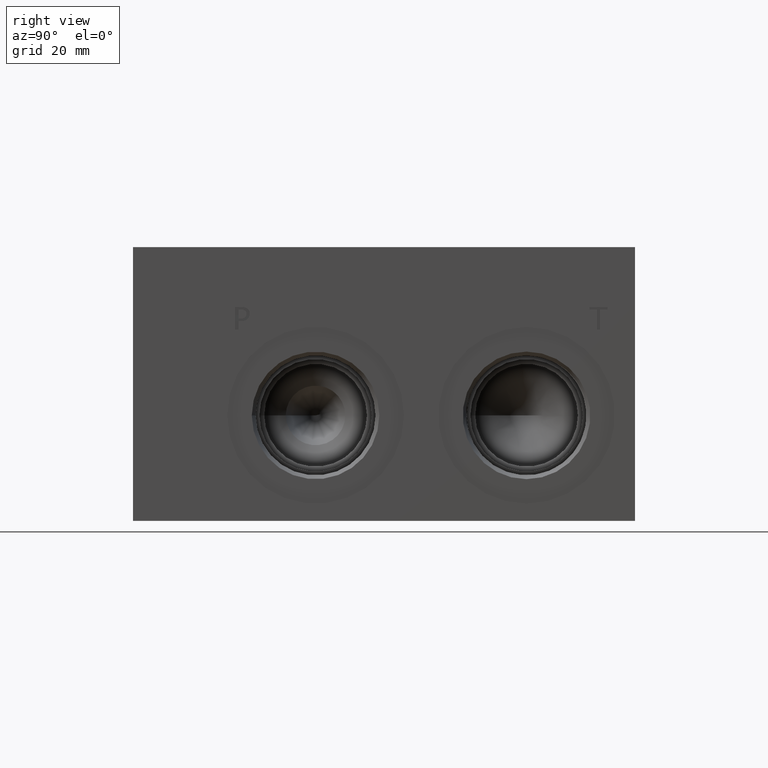
[diagram: clean part render]
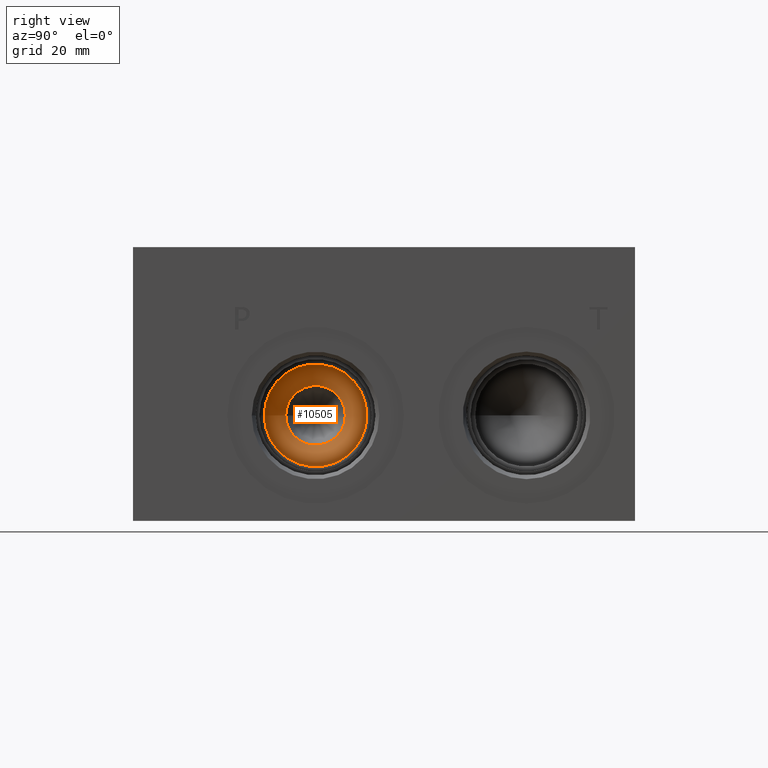
[diagram: same view with one face highlighted and labeled with its STEP entity id]
A machine part, right view. The second image highlights one B-rep face of the part: STEP entity #10505.
In plain terms, the highlighted conical surface has half-angle 60 deg.
Its self-contained STEP definition (entity closure, byte-faithful):
#70=CONICAL_SURFACE('',#10937,7.14375,1.0471975511966);
#124=CIRCLE('',#10938,14.2875);
#125=CIRCLE('',#10939,8.29239320143379);
#126=CIRCLE('',#10940,14.2875);
#1130=FACE_OUTER_BOUND('',#1720,.T.);
#1720=EDGE_LOOP('',(#8911,#8912,#8913,#8914,#8915));
#2764=LINE('',#17673,#3746);
#3746=VECTOR('',#12731,7.14375);
#4914=VERTEX_POINT('',#17669);
#4915=VERTEX_POINT('',#17670);
#4916=VERTEX_POINT('',#17672);
#6302=EDGE_CURVE('',#4914,#4915,#124,.T.);
#6303=EDGE_CURVE('',#4915,#4916,#2764,.T.);
#6304=EDGE_CURVE('',#4916,#4916,#125,.T.);
#6305=EDGE_CURVE('',#4915,#4914,#126,.T.);
#8911=ORIENTED_EDGE('',*,*,#6302,.T.);
#8912=ORIENTED_EDGE('',*,*,#6303,.T.);
#8913=ORIENTED_EDGE('',*,*,#6304,.F.);
#8914=ORIENTED_EDGE('',*,*,#6303,.F.);
#8915=ORIENTED_EDGE('',*,*,#6305,.T.);
#10505=ADVANCED_FACE('',(#1130),#70,.F.);
#10937=AXIS2_PLACEMENT_3D('',#17668,#12727,#12728);
#10938=AXIS2_PLACEMENT_3D('',#17671,#12729,#12730);
#10939=AXIS2_PLACEMENT_3D('',#17674,#12732,#12733);
#10940=AXIS2_PLACEMENT_3D('',#17675,#12734,#12735);
#12727=DIRECTION('center_axis',(1.,0.,0.));
#12728=DIRECTION('ref_axis',(0.,1.,0.));
#12729=DIRECTION('center_axis',(1.,0.,0.));
#12730=DIRECTION('ref_axis',(0.,1.,0.));
#12731=DIRECTION('',(-0.5,0.866025403784438,1.06057523872491E-16));
#12732=DIRECTION('center_axis',(1.,0.,0.));
#12733=DIRECTION('ref_axis',(0.,1.,0.));
#12734=DIRECTION('center_axis',(1.,0.,0.));
#12735=DIRECTION('ref_axis',(0.,1.,0.));
#17668=CARTESIAN_POINT('Origin',(90.2284640144766,50.8,29.3624));
#17669=CARTESIAN_POINT('',(94.35291,65.0875,29.3624));
#17670=CARTESIAN_POINT('',(94.35291,36.5125,29.3624));
#17671=CARTESIAN_POINT('Origin',(94.35291,50.8,29.3624));
#17672=CARTESIAN_POINT('',(90.8916334760272,42.5076067985662,29.3624));
#17673=CARTESIAN_POINT('',(90.2284640144766,43.65625,29.3624));
#17674=CARTESIAN_POINT('Origin',(90.8916334760272,50.8,29.3624));
#17675=CARTESIAN_POINT('Origin',(94.35291,50.8,29.3624));